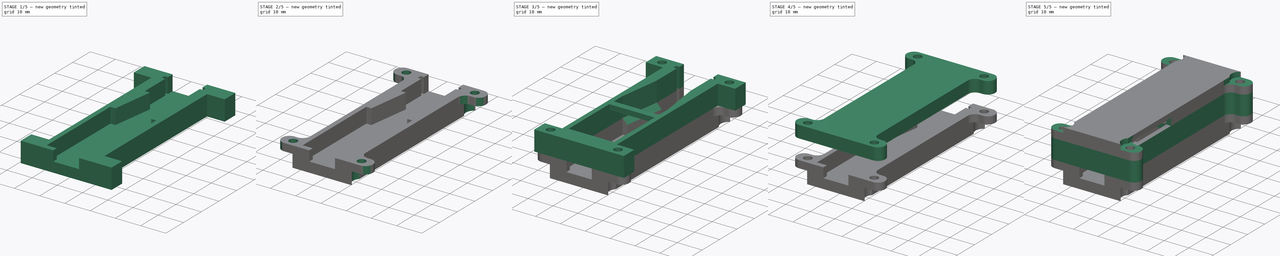
[diagram: build sequence overview — one tinted view per stage of 5, left to right]
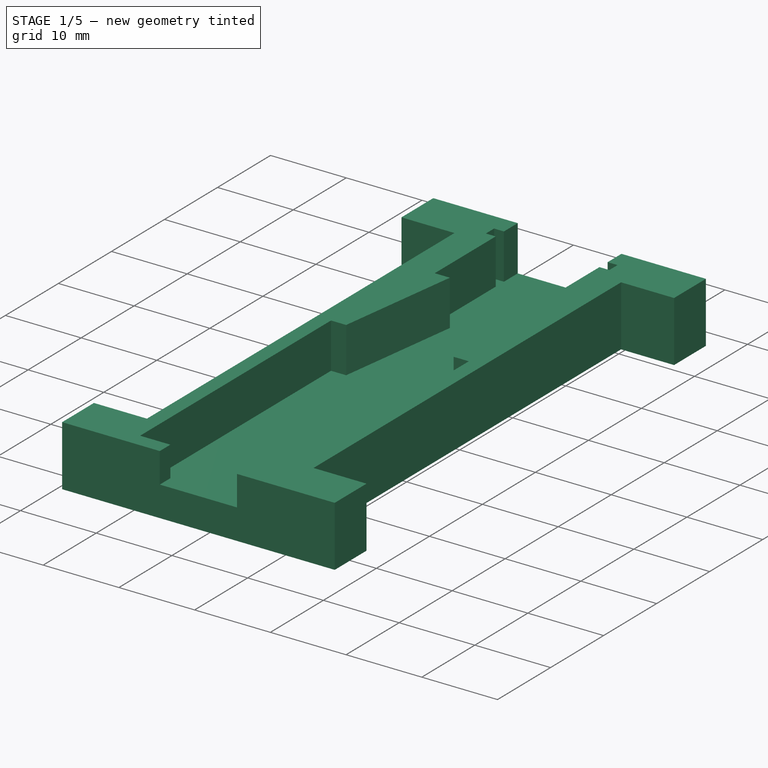
[diagram: stage 1 of 5 — iso view after this stage's code; geometry added in this stage tinted green]
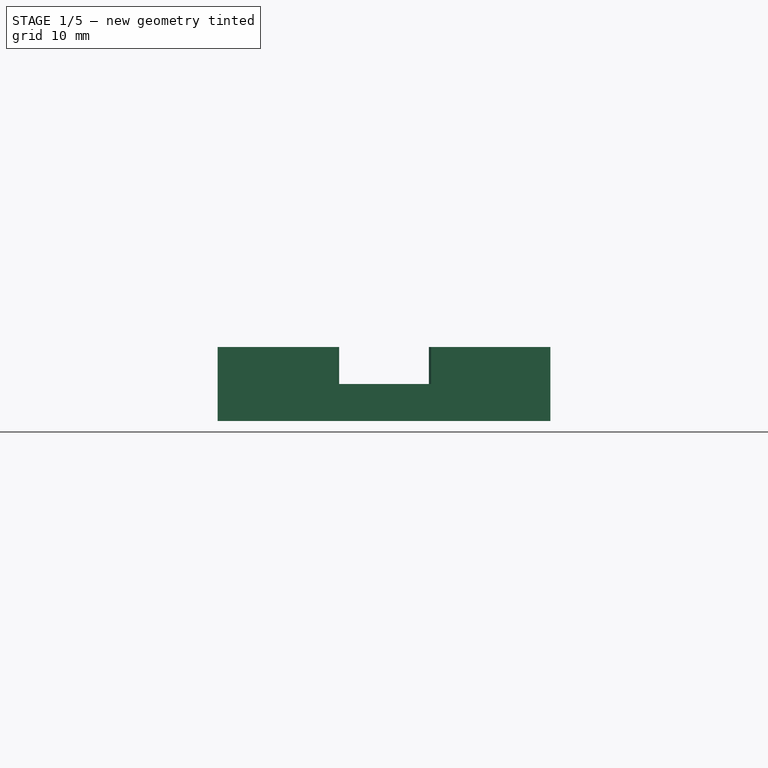
[diagram: stage 1 of 5 — front view after this stage's code; geometry added in this stage tinted green]
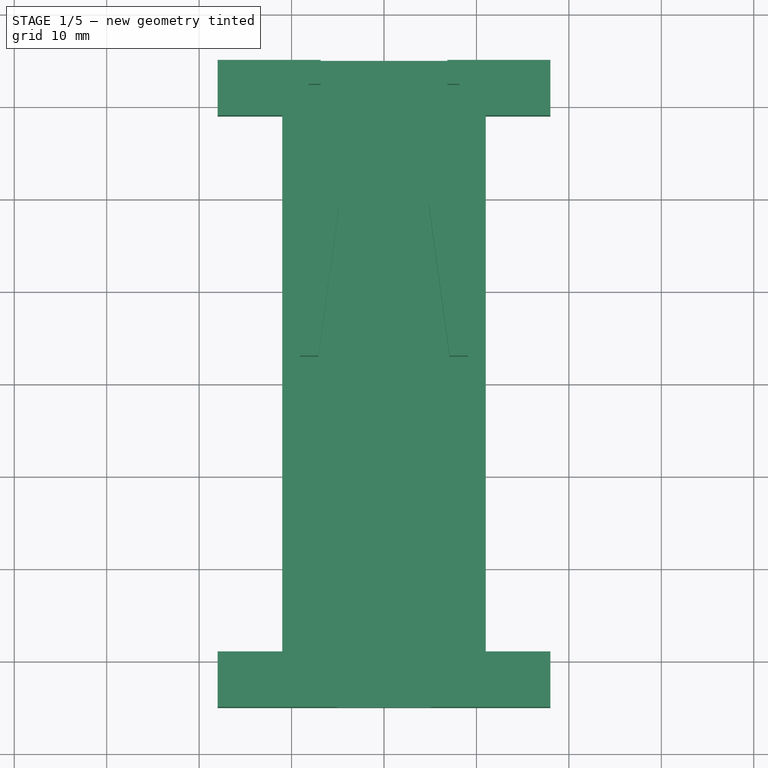
[diagram: stage 1 of 5 — top view after this stage's code; geometry added in this stage tinted green]
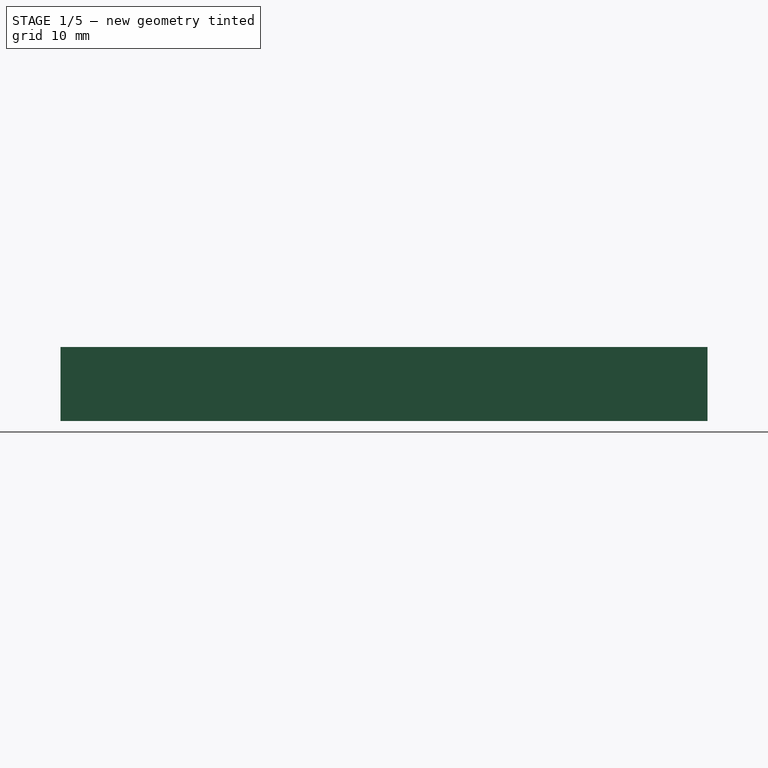
[diagram: stage 1 of 5 — right view after this stage's code; geometry added in this stage tinted green]
FCSTD DOCUMENT  (FreeCAD 0.18R4 (GitTag))
Label: shifter_usb_adapter
License: All rights reserved
LicenseURL: http://en.wikipedia.org/wiki/All_rights_reserved
objects: Sketcher::SketchObject×11, PartDesign::Pad×7, PartDesign::Pocket×4, PartDesign::Fillet×3, PartDesign::Body×3, PartDesign::ShapeBinder×2, PartDesign::Chamfer×1, App::Part×1
note: 42 computed .brp shape members not serialized (recipe doc carries the construction recipe); baked Part::Feature solids carry a one-line shape summary decoded from their .brp

FEATURE [Sketcher::SketchObject] Sketch
  MapMode = 5
  Support = -> [XY_Plane001]
  sketch-geometry (12):
    g0: LineSegment StartX=18 StartY=35 StartZ=0 EndX=-18 EndY=35 EndZ=0
    g1: LineSegment StartX=-18 StartY=35 StartZ=0 EndX=-18 EndY=29 EndZ=0
    g2: LineSegment StartX=-18 StartY=29 StartZ=0 EndX=-11 EndY=29 EndZ=0
    g3: LineSegment StartX=-11 StartY=29 StartZ=0 EndX=-11 EndY=-29 EndZ=0
    g4: LineSegment StartX=-11 StartY=-29 StartZ=0 EndX=-18 EndY=-29 EndZ=0
    g5: LineSegment StartX=-18 StartY=-29 StartZ=0 EndX=-18 EndY=-35 EndZ=0
    g6: LineSegment StartX=-18 StartY=-35 StartZ=0 EndX=18 EndY=-35 EndZ=0
    g7: LineSegment StartX=18 StartY=-35 StartZ=0 EndX=18 EndY=-29 EndZ=0
    g8: LineSegment StartX=18 StartY=-29 StartZ=0 EndX=11 EndY=-29 EndZ=0
    g9: LineSegment StartX=11 StartY=-29 StartZ=0 EndX=11 EndY=29 EndZ=0
    g10: LineSegment StartX=11 StartY=29 StartZ=0 EndX=18 EndY=29 EndZ=0
    g11: LineSegment StartX=18 StartY=29 StartZ=0 EndX=18 EndY=35 EndZ=0
  constraints (33):
    c: Coincident(g0,g1)
    c: Coincident(g1,g2)
    c: Coincident(g2,g3)
    c: Coincident(g3,g4)
    c: Coincident(g4,g5)
    c: Coincident(g5,g6)
    c: Coincident(g6,g7)
    c: Coincident(g7,g8)
    c: Coincident(g8,g9)
    c: Coincident(g9,g10)
    c: Coincident(g10,g11)
    c: Coincident(g11,g0)
    c: Horizontal(g2)
    c: Horizontal(g10)
    c: Horizontal(g4)
    c: Horizontal(g8)
    c: Horizontal(g6)
    c: Vertical(g5)
    c: Vertical(g9)
    c: Vertical(g7)
    c: Vertical(g11)
    c: Vertical(g1)
    c: PointOnObject(g8,g4)
    c: PointOnObject(g7,g11)
    c: PointOnObject(g4,g1)
    c: Equal(g1,g5)
    c: Symmetric(g0,g0,g-2)
    c: Symmetric(g9,g2,g-2)
    c: DistanceX(g2,g9) = 22
    c: DistanceY(g6,g0) = 70
    c: DistanceY(g11,g11) = 6
    c: DistanceX(g10,g10) = 7
    c: Symmetric(g2,g3,g-1)
FEATURE [PartDesign::Pad] Pad
  Length = 2
  Length2 = 100
  Profile = -> Sketch
  Type = 0
FEATURE [Sketcher::SketchObject] Sketch001
  ExternalGeometry = -> [Pad]
  MapMode = 5
  Placement = pos=(0,0,2) rot=(0,0,1;0rad)
  Support = -> [Pad]
  sketch-geometry (36):
    g0: LineSegment StartX=-6.85 StartY=35 StartZ=0 EndX=-18 EndY=35 EndZ=0
    g1: LineSegment StartX=-18 StartY=35 StartZ=0 EndX=-18 EndY=29 EndZ=0
    g2: LineSegment StartX=-18 StartY=29 StartZ=0 EndX=-11 EndY=29 EndZ=0
    g3: LineSegment StartX=-11 StartY=29 StartZ=0 EndX=-11 EndY=-29 EndZ=0
    g4: LineSegment StartX=-11 StartY=-29 StartZ=0 EndX=-18 EndY=-29 EndZ=0
    g5: LineSegment StartX=-18 StartY=-29 StartZ=0 EndX=-18 EndY=-35 EndZ=0
    g6: LineSegment StartX=-18 StartY=-35 StartZ=0 EndX=-5.1 EndY=-35 EndZ=0
    g7: LineSegment StartX=-5.1 StartY=-35 StartZ=0 EndX=-5.1 EndY=-33 EndZ=0
    g8: LineSegment StartX=-5.1 StartY=-33 StartZ=0 EndX=-9.1 EndY=-33 EndZ=0
    g9: LineSegment StartX=-9.1 StartY=-33 StartZ=0 EndX=-9.1 EndY=3 EndZ=0
    g10: LineSegment StartX=-4.85 StartY=19.35 StartZ=0 EndX=-6.85 EndY=19.35 EndZ=0
    g11: LineSegment StartX=-6.85 StartY=19.35 StartZ=0 EndX=-6.85 EndY=30.85 EndZ=0
    g12: LineSegment StartX=-6.85 StartY=30.85 StartZ=0 EndX=-8.15 EndY=30.85 EndZ=0
    g13: LineSegment StartX=-8.15 StartY=30.85 StartZ=0 EndX=-8.15 EndY=32.4 EndZ=0
    g14: LineSegment StartX=-8.15 StartY=32.4 StartZ=0 EndX=-6.85 EndY=32.4 EndZ=0
    g15: LineSegment StartX=-6.85 StartY=32.4 StartZ=0 EndX=-6.85 EndY=35 EndZ=0
    g16: LineSegment StartX=6.85 StartY=35 StartZ=0 EndX=18 EndY=35 EndZ=0
    g17: LineSegment StartX=18 StartY=35 StartZ=0 EndX=18 EndY=29 EndZ=0
    g18: LineSegment StartX=18 StartY=29 StartZ=0 EndX=11 EndY=29 EndZ=0
    g19: LineSegment StartX=11 StartY=29 StartZ=0 EndX=11 EndY=-29 EndZ=0
    g20: LineSegment StartX=11 StartY=-29 StartZ=0 EndX=18 EndY=-29 EndZ=0
    g21: LineSegment StartX=18 StartY=-29 StartZ=0 EndX=18 EndY=-35 EndZ=0
    g22: LineSegment StartX=18 StartY=-35 StartZ=0 EndX=5.1 EndY=-35 EndZ=0
    g23: LineSegment StartX=5.1 StartY=-35 StartZ=0 EndX=5.1 EndY=-33 EndZ=0
    g24: LineSegment StartX=5.1 StartY=-33 StartZ=0 EndX=9.1 EndY=-33 EndZ=0
    g25: LineSegment StartX=9.1 StartY=-33 StartZ=0 EndX=9.1 EndY=3 EndZ=0
    g26: LineSegment StartX=4.85 StartY=19.35 StartZ=0 EndX=6.85 EndY=19.35 EndZ=0
    g27: LineSegment StartX=6.85 StartY=19.35 StartZ=0 EndX=6.85 EndY=30.85 EndZ=0
    g28: LineSegment StartX=6.85 StartY=30.85 StartZ=0 EndX=8.15 EndY=30.85 EndZ=0
    g29: LineSegment StartX=8.15 StartY=30.85 StartZ=0 EndX=8.15 EndY=32.4 EndZ=0
    g30: LineSegment StartX=8.15 StartY=32.4 StartZ=0 EndX=6.85 EndY=32.4 EndZ=0
    g31: LineSegment StartX=6.85 StartY=32.4 StartZ=0 EndX=6.85 EndY=35 EndZ=0
    g32: LineSegment StartX=-9.1 StartY=3 StartZ=0 EndX=-7.1 EndY=3 EndZ=0
    g33: LineSegment StartX=-4.85 StartY=19.35 StartZ=0 EndX=-7.1 EndY=3 EndZ=0
    g34: LineSegment StartX=4.85 StartY=19.35 StartZ=0 EndX=7.1 EndY=3 EndZ=0
    g35: LineSegment StartX=7.1 StartY=3 StartZ=0 EndX=9.1 EndY=3 EndZ=0
  constraints (89):
    c: Coincident(g0,g1)
    c: Coincident(g1,g2)
    c: Coincident(g2,g3)
    c: Coincident(g3,g4)
    c: Coincident(g4,g5)
    c: Coincident(g5,g6)
    c: Coincident(g6,g7)
    c: Coincident(g7,g8)
    c: Coincident(g8,g9)
    c: Coincident(g10,g11)
    c: Coincident(g11,g12)
    c: Coincident(g12,g13)
    c: Coincident(g13,g14)
    c: Coincident(g14,g15)
    c: Coincident(g15,g0)
    c: Horizontal(g0)
    c: Horizontal(g14)
    c: Horizontal(g12)
    c: Horizontal(g10)
    c: Horizontal(g8)
    c: Horizontal(g6)
    c: Vertical(g15)
    c: Vertical(g13)
    c: Vertical(g11)
    c: Vertical(g9)
    c: Vertical(g7)
    c: PointOnObject(g11,g15)
    c: Coincident(g-8,g0)
    c: Coincident(g-7,g1)
    c: Coincident(g2,g-6)
    c: Coincident(g3,g-5)
    c: Coincident(g-3,g4)
    c: Coincident(g-4,g5)
    c: DistanceX(g10,g10) = 2
    c: DistanceX(g8,g-1) = 9.1
    c: DistanceX(g8,g8) = 4
    c: DistanceY(g7,g7) = 2
    c: DistanceY(g9,g9) = 36
    c: DistanceY(g13,g13) = 1.55
    c: DistanceY(g15,g15) = 2.6
    c: DistanceY(g11,g11) = 11.5
    c: DistanceX(g14,g14) = 1.3
    c: DistanceX(g11,g-1) = 6.85
    c: Coincident(g16,g17)
    c: Coincident(g17,g18)
    c: Coincident(g18,g19)
    c: Coincident(g19,g20)
    c: Coincident(g20,g21)
    c: Coincident(g21,g22)
    c: Coincident(g22,g23)
    c: Coincident(g23,g24)
    c: Coincident(g24,g25)
    c: Coincident(g26,g27)
    c: Coincident(g27,g28)
    c: Coincident(g28,g29)
    c: Coincident(g29,g30)
    c: Coincident(g30,g31)
    c: Coincident(g31,g16)
    c: Horizontal(g30)
    c: Horizontal(g28)
    c: Horizontal(g26)
    c: Horizontal(g24)
    c: Horizontal(g22)
    c: Vertical(g31)
    c: Vertical(g29)
    c: Vertical(g27)
    c: Vertical(g25)
    c: Vertical(g23)
    c: Symmetric(g0,g16,g-2)
    c: Symmetric(g29,g13,g-2)
    c: Symmetric(g18,g2,g-2)
    c: Symmetric(g17,g1,g-2)
    c: Symmetric(g16,g0,g-2)
    c: Symmetric(g27,g11,g-2)
    c: Symmetric(g26,g10,g-2)
    c: Symmetric(g25,g9,g-2)
    c: Symmetric(g23,g7,g-2)
    c: Symmetric(g19,g3,g-2)
    c: Symmetric(g20,g4,g-2)
    c: Symmetric(g21,g5,g-2)
    c: Coincident(g10,g33)
    c: Coincident(g33,g32)
    c: Coincident(g32,g9)
    c: Horizontal(g32)
    c: Equal(g32,g10)
    c: Coincident(g35,g34)
    c: Coincident(g35,g25)
    c: Coincident(g34,g26)
    c: Symmetric(g34,g32,g-2)
FEATURE [PartDesign::Pad] Pad001
  BaseFeature = -> Pad
  Length = 6
  Length2 = 100
  Profile = -> Sketch001
  Type = 0
FEATURE [Sketcher::SketchObject] Sketch005
  ExternalGeometry = -> [Pad001]
  MapMode = 5
  Placement = pos=(0,0,2) rot=(0,0,1;0rad)
  Support = -> [Pad001]
  sketch-geometry (4):
    g0: LineSegment StartX=-5.1 StartY=-33 StartZ=0 EndX=5.1 EndY=-33 EndZ=0
    g1: LineSegment StartX=5.1 StartY=-33 StartZ=0 EndX=5.1 EndY=-35 EndZ=0
    g2: LineSegment StartX=5.1 StartY=-35 StartZ=0 EndX=-5.1 EndY=-35 EndZ=0
    g3: LineSegment StartX=-5.1 StartY=-35 StartZ=0 EndX=-5.1 EndY=-33 EndZ=0
  constraints (10):
    c: Coincident(g0,g1)
    c: Coincident(g1,g2)
    c: Coincident(g2,g3)
    c: Coincident(g3,g0)
    c: Horizontal(g0)
    c: Horizontal(g2)
    c: Vertical(g1)
    c: Vertical(g3)
    c: Coincident(g0,g-3)
    c: Coincident(g1,g-4)
FEATURE [PartDesign::Pad] Pad005
  BaseFeature = -> Pad001
  Length = 2
  Length2 = 100
  Profile = -> Sketch005
  Type = 0
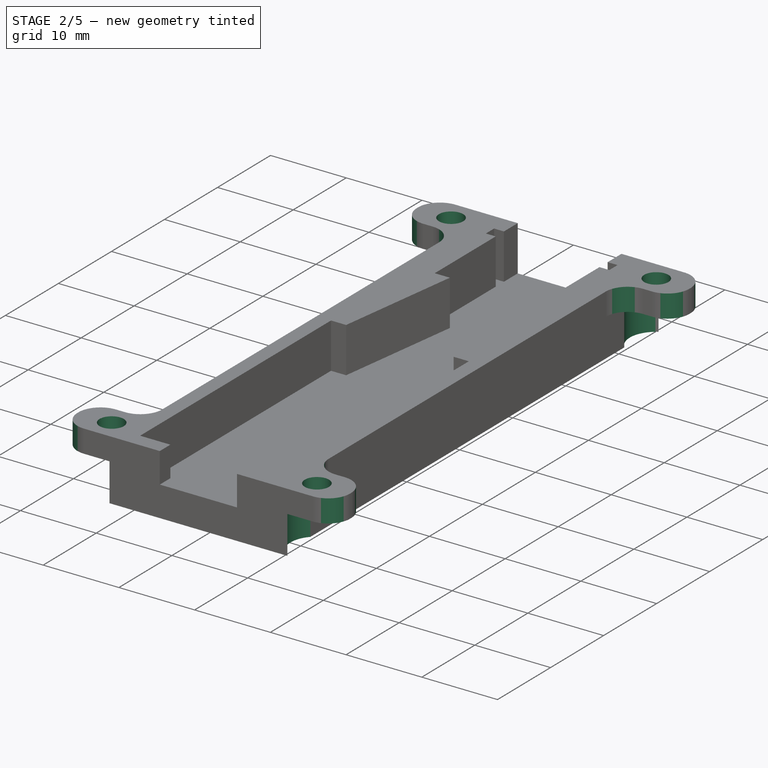
[diagram: stage 2 of 5 — iso view after this stage's code; geometry added in this stage tinted green]
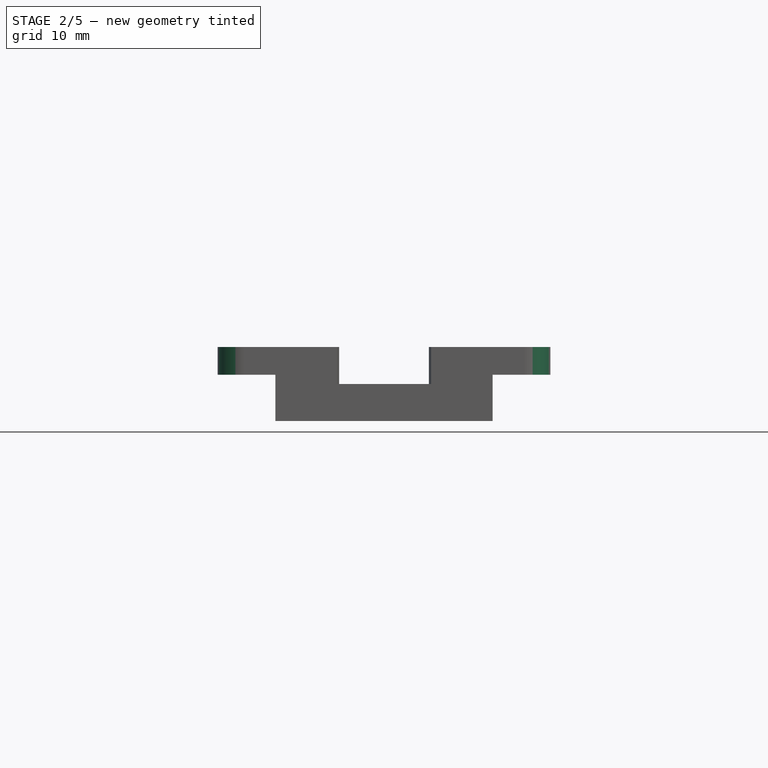
[diagram: stage 2 of 5 — front view after this stage's code; geometry added in this stage tinted green]
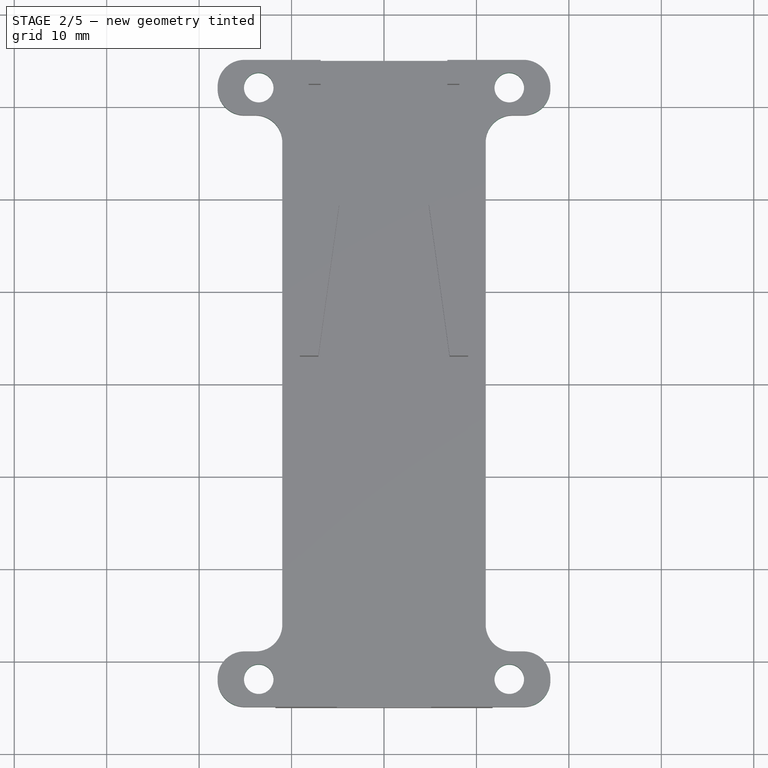
[diagram: stage 2 of 5 — top view after this stage's code; geometry added in this stage tinted green]
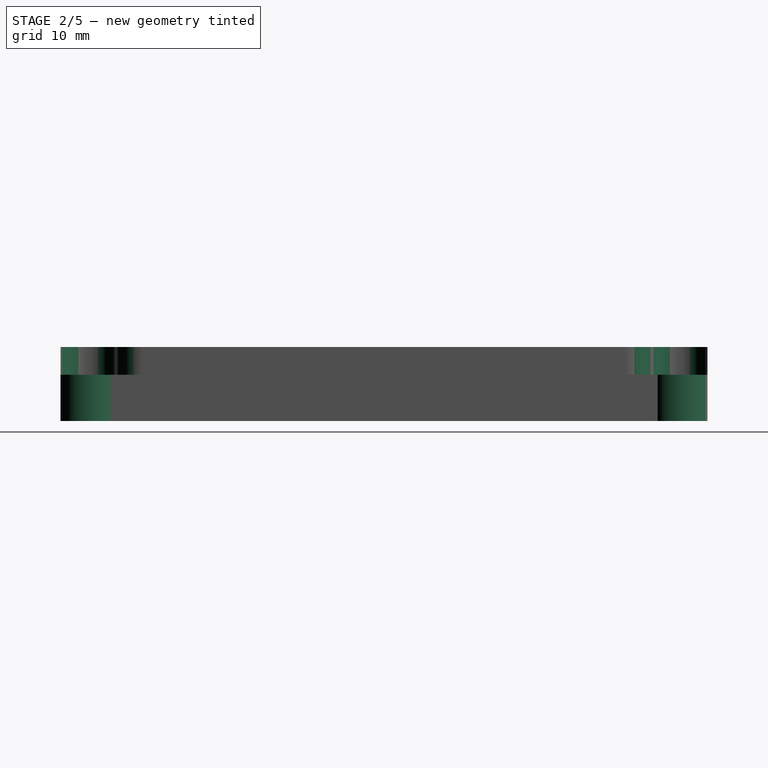
[diagram: stage 2 of 5 — right view after this stage's code; geometry added in this stage tinted green]
FEATURE [Sketcher::SketchObject] Sketch006
  ExternalGeometry = -> [Pad005]
  MapMode = 5
  Placement = pos=(0,0,8) rot=(0,0,1;0rad)
  Support = -> [Pad005]
  sketch-geometry (6):
    g0: Circle CenterX=-13.55 CenterY=32 CenterZ=0 NormalX=0 NormalY=0 NormalZ=1 AngleXU=0 Radius=1.6
    g1: Circle CenterX=-13.55 CenterY=-32 CenterZ=0 NormalX=0 NormalY=0 NormalZ=1 AngleXU=0 Radius=1.6
    g2: Circle CenterX=13.55 CenterY=32 CenterZ=0 NormalX=0 NormalY=0 NormalZ=1 AngleXU=0 Radius=1.6
    g3: Circle CenterX=13.55 CenterY=-32 CenterZ=0 NormalX=0 NormalY=0 NormalZ=1 AngleXU=0 Radius=1.6
    g4: GeomPoint X=-18 Y=-32 Z=0
    g5: GeomPoint X=-9.1 Y=-32 Z=0
  constraints (11):
    c: Diameter(g0) = 3.2
    c: Equal(g0,g1)
    c: Diameter(g2) = 3.2
    c: Equal(g2,g3)
    c: Symmetric(g2,g0,g-2)
    c: Symmetric(g1,g3,g-2)
    c: Symmetric(g1,g0,g-1)
    c: PointOnObject(g5,g-3)
    c: Symmetric(g-4,g-4,g4)
    c: Horizontal(g4,g1)
    c: Symmetric(g4,g5,g1)
FEATURE [PartDesign::Pocket] Pocket
  BaseFeature = -> Pad005
  Length = 5
  Length2 = 100
  Profile = -> Sketch006
  Type = 1
FEATURE [PartDesign::Fillet] Fillet002
  Base = -> Pocket [Edge59,Edge140,Edge144,Edge146,Edge51,Edge55,Edge145,Edge142,Edge143,Edge141,Edge139,Edge27]
  BaseFeature = -> Pocket
  Radius = 2.9
FEATURE [Sketcher::SketchObject] Sketch011
  ExternalGeometry = -> [Fillet002]
  MapMode = 5
  Placement = pos=(0,0,0) rot=(1,0,0;3.14159rad)
  Support = -> [Fillet002]
  sketch-geometry (20):
    g0: ArcOfCircle CenterX=-13.55 CenterY=32 CenterZ=0 NormalX=0 NormalY=0 NormalZ=1 AngleXU=0 Radius=3.5 StartAngle=5.52862 EndAngle=7.85398
    g1: ArcOfCircle CenterX=13.55 CenterY=32 CenterZ=0 NormalX=0 NormalY=0 NormalZ=1 AngleXU=0 Radius=3.5 StartAngle=1.5708 EndAngle=3.89615
    g2: ArcOfCircle CenterX=13.55 CenterY=-32 CenterZ=0 NormalX=0 NormalY=0 NormalZ=1 AngleXU=0 Radius=3.5 StartAngle=2.38703 EndAngle=4.71239
    g3: ArcOfCircle CenterX=-13.55 CenterY=-32 CenterZ=0 NormalX=0 NormalY=0 NormalZ=1 AngleXU=0 Radius=3.5 StartAngle=4.71239 EndAngle=7.03775
    g4: LineSegment StartX=-13.55 StartY=35.5 StartZ=0 EndX=-21 EndY=35.5 EndZ=0
    g5: LineSegment StartX=-21 StartY=35.5 StartZ=0 EndX=-21 EndY=26.1 EndZ=0
    g6: LineSegment StartX=-21 StartY=-26.1 StartZ=0 EndX=-21 EndY=-35.5 EndZ=0
    g7: LineSegment StartX=-21 StartY=-35.5 StartZ=0 EndX=-13.55 EndY=-35.5 EndZ=0
    g8: LineSegment StartX=13.55 StartY=-35.5 StartZ=0 EndX=21 EndY=-35.5 EndZ=0
    g9: LineSegment StartX=21 StartY=-35.5 StartZ=0 EndX=21 EndY=-26.1 EndZ=0
    g10: LineSegment StartX=21 StartY=26.1 StartZ=0 EndX=21 EndY=35.5 EndZ=0
    g11: LineSegment StartX=21 StartY=35.5 StartZ=0 EndX=13.55 EndY=35.5 EndZ=0
    g12: LineSegment StartX=-11 StartY=29.6026 StartZ=0 EndX=-11 EndY=26.1 EndZ=0
    g13: LineSegment StartX=-11 StartY=26.1 StartZ=0 EndX=-21 EndY=26.1 EndZ=0
    g14: LineSegment StartX=-11 StartY=-29.6026 StartZ=0 EndX=-11 EndY=-26.1 EndZ=0
    g15: LineSegment StartX=-11 StartY=-26.1 StartZ=0 EndX=-21 EndY=-26.1 EndZ=0
    g16: LineSegment StartX=11 StartY=-29.6026 StartZ=0 EndX=11 EndY=-26.1 EndZ=0
    g17: LineSegment StartX=11 StartY=-26.1 StartZ=0 EndX=21 EndY=-26.1 EndZ=0
    g18: LineSegment StartX=11 StartY=29.6026 StartZ=0 EndX=11 EndY=26.1 EndZ=0
    g19: LineSegment StartX=11 StartY=26.1 StartZ=0 EndX=21 EndY=26.1 EndZ=0
  constraints (56):
    c: Coincident(g-6,g3)
    c: Coincident(g-5,g2)
    c: Coincident(g1,g-4)
    c: Coincident(g-3,g0)
    c: Vertical(g0,g0)
    c: Vertical(g3,g3)
    c: Vertical(g2,g2)
    c: Vertical(g1,g1)
    c: Equal(g2,g3)
    c: Equal(g3,g0)
    c: Equal(g0,g1)
    c: Diameter(g0) = 7
    c: Coincident(g4,g5)
    c: Coincident(g6,g7)
    c: Coincident(g8,g9)
    c: Coincident(g10,g11)
    c: Coincident(g11,g1)
    c: Coincident(g0,g4)
    c: Coincident(g3,g7)
    c: Coincident(g8,g2)
    c: Horizontal(g4)
    c: Horizontal(g11)
    c: Horizontal(g8)
    c: Horizontal(g7)
    c: Vertical(g6)
    c: Vertical(g5)
    c: Vertical(g10)
    c: Vertical(g9)
    c: PointOnObject(g1,g-8)
    c: PointOnObject(g2,g-8)
    c: PointOnObject(g3,g-7)
    c: PointOnObject(g0,g-7)
    c: Coincident(g12,g13)
    c: Coincident(g14,g15)
    c: Coincident(g16,g17)
    c: Coincident(g18,g19)
    c: Coincident(g18,g1)
    c: Coincident(g19,g10)
    c: Coincident(g9,g17)
    c: Coincident(g16,g2)
    c: Coincident(g3,g14)
    c: Coincident(g6,g15)
    c: Coincident(g13,g5)
    c: Coincident(g0,g12)
    c: Coincident(g12,g-7)
    c: Coincident(g18,g-8)
    c: Coincident(g16,g-8)
    c: Coincident(g-7,g14)
    c: Horizontal(g13)
    c: Horizontal(g19)
    c: Horizontal(g17)
    c: Horizontal(g15)
    c: Equal(g15,g13)
    c: Equal(g13,g19)
    c: Equal(g19,g17)
    c: DistanceX(g17,g17) = 10
FEATURE [PartDesign::Pocket] Pocket003
  BaseFeature = -> Fillet002
  Length = 5
  Length2 = 100
  Profile = -> Sketch011
  Type = 0
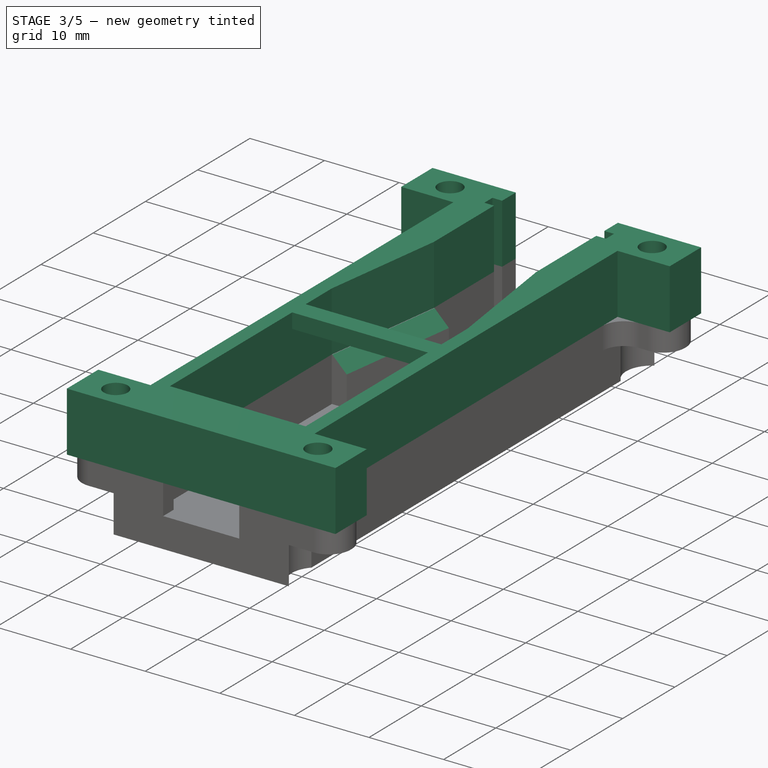
[diagram: stage 3 of 5 — iso view after this stage's code; geometry added in this stage tinted green]
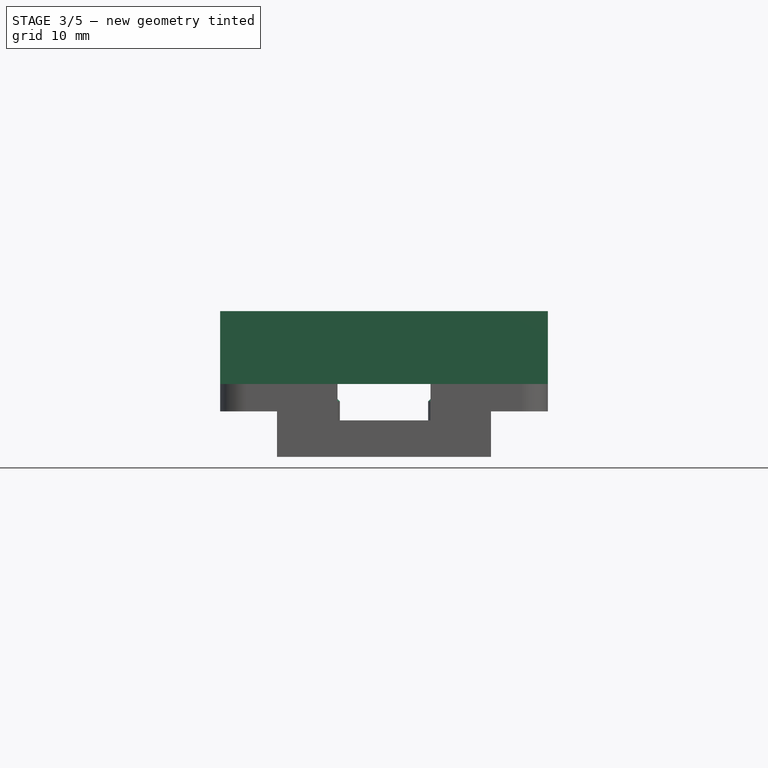
[diagram: stage 3 of 5 — front view after this stage's code; geometry added in this stage tinted green]
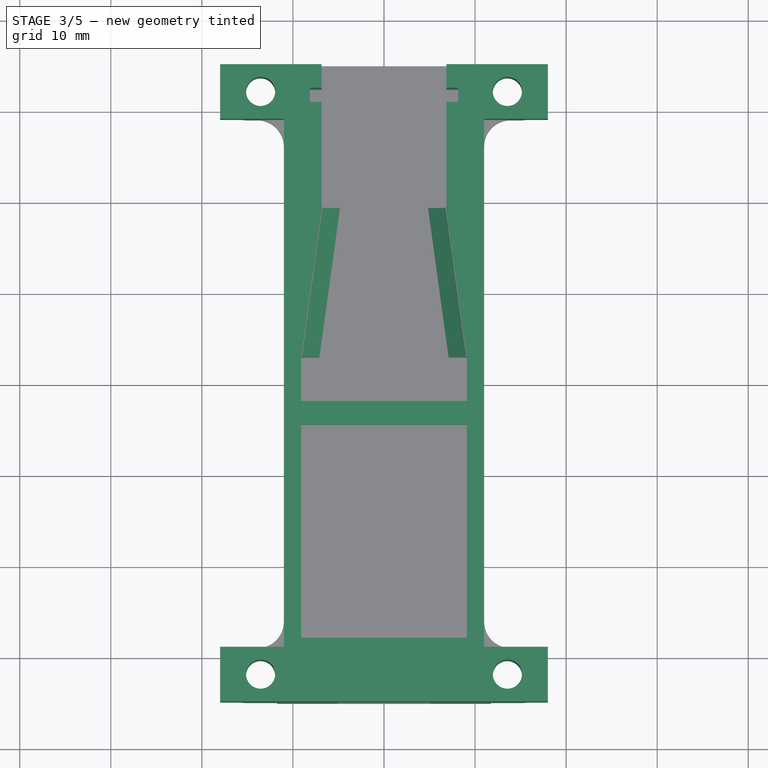
[diagram: stage 3 of 5 — top view after this stage's code; geometry added in this stage tinted green]
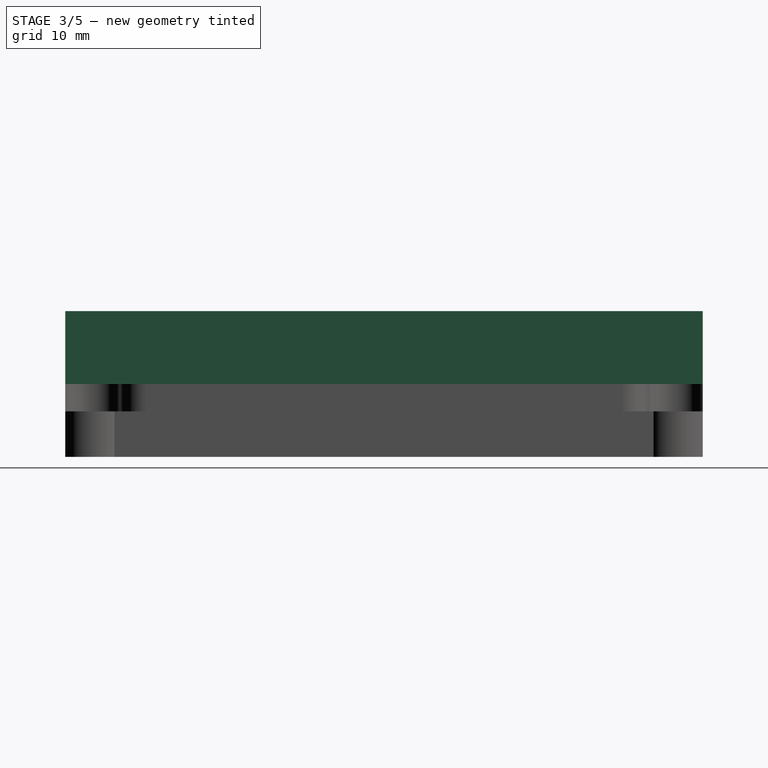
[diagram: stage 3 of 5 — right view after this stage's code; geometry added in this stage tinted green]
FEATURE [PartDesign::ShapeBinder] ShapeBinder  label="ReferencePad003"
  Support = -> [Pocket]
  TraceSupport = false
FEATURE [Sketcher::SketchObject] Sketch002
  ExternalGeometry = -> [ShapeBinder]
  MapMode = 5
  Placement = pos=(0,0,8) rot=(0,0,1;0rad)
  Support = -> [ShapeBinder]
  sketch-geometry (34):
    g0: LineSegment StartX=-6.85 StartY=35 StartZ=0 EndX=-18 EndY=35 EndZ=0
    g1: LineSegment StartX=-18 StartY=35 StartZ=0 EndX=-18 EndY=29 EndZ=0
    g2: LineSegment StartX=-18 StartY=29 StartZ=0 EndX=-11 EndY=29 EndZ=0
    g3: LineSegment StartX=-11 StartY=29 StartZ=0 EndX=-11 EndY=-29 EndZ=0
    g4: LineSegment StartX=-11 StartY=-29 StartZ=0 EndX=-18 EndY=-29 EndZ=0
    g5: LineSegment StartX=-18 StartY=-29 StartZ=0 EndX=-18 EndY=-35 EndZ=0
    g6: LineSegment StartX=-9.1 StartY=-33 StartZ=0 EndX=-9.1 EndY=3 EndZ=0
    g7: LineSegment StartX=-9.1 StartY=3 StartZ=0 EndX=-6.85 EndY=19.35 EndZ=0
    g8: LineSegment StartX=-6.85 StartY=19.35 StartZ=0 EndX=-6.85 EndY=30.85 EndZ=0
    g9: LineSegment StartX=-6.85 StartY=30.85 StartZ=0 EndX=-8.15 EndY=30.85 EndZ=0
    g10: LineSegment StartX=-8.15 StartY=30.85 StartZ=0 EndX=-8.15 EndY=32.4 EndZ=0
    g11: LineSegment StartX=-8.15 StartY=32.4 StartZ=0 EndX=-6.85 EndY=32.4 EndZ=0
    g12: LineSegment StartX=-6.85 StartY=32.4 StartZ=0 EndX=-6.85 EndY=35 EndZ=0
    g13: LineSegment StartX=6.85 StartY=35 StartZ=0 EndX=18 EndY=35 EndZ=0
    g14: LineSegment StartX=18 StartY=35 StartZ=0 EndX=18 EndY=29 EndZ=0
    g15: LineSegment StartX=18 StartY=29 StartZ=0 EndX=11 EndY=29 EndZ=0
    g16: LineSegment StartX=11 StartY=29 StartZ=0 EndX=11 EndY=-29 EndZ=0
    g17: LineSegment StartX=11 StartY=-29 StartZ=0 EndX=18 EndY=-29 EndZ=0
    g18: LineSegment StartX=18 StartY=-29 StartZ=0 EndX=18 EndY=-35 EndZ=0
    g19: LineSegment StartX=9.1 StartY=-33 StartZ=0 EndX=9.1 EndY=3 EndZ=0
    g20: LineSegment StartX=9.1 StartY=3 StartZ=0 EndX=6.85 EndY=19.35 EndZ=0
    g21: LineSegment StartX=6.85 StartY=19.35 StartZ=0 EndX=6.85 EndY=30.85 EndZ=0
    g22: LineSegment StartX=6.85 StartY=30.85 StartZ=0 EndX=8.15 EndY=30.85 EndZ=0
    g23: LineSegment StartX=8.15 StartY=30.85 StartZ=0 EndX=8.15 EndY=32.4 EndZ=0
    g24: LineSegment StartX=8.15 StartY=32.4 StartZ=0 EndX=6.85 EndY=32.4 EndZ=0
    g25: LineSegment StartX=6.85 StartY=32.4 StartZ=0 EndX=6.85 EndY=35 EndZ=0
    g26: LineSegment StartX=-9.1 StartY=-33 StartZ=0 EndX=9.1 EndY=-33 EndZ=0
    g27: LineSegment StartX=18 StartY=-35 StartZ=0 EndX=-18 EndY=-35 EndZ=0
    g28: Circle CenterX=-13.55 CenterY=32 CenterZ=0 NormalX=0 NormalY=0 NormalZ=1 AngleXU=0 Radius=1.6
    g29: Circle CenterX=-13.55 CenterY=-32 CenterZ=0 NormalX=0 NormalY=0 NormalZ=1 AngleXU=0 Radius=1.6
    g30: GeomPoint X=-18 Y=-32 Z=0
    g31: GeomPoint X=-9.1 Y=-32 Z=0
    g32: Circle CenterX=13.55 CenterY=32 CenterZ=0 NormalX=0 NormalY=0 NormalZ=1 AngleXU=0 Radius=1.6
    g33: Circle CenterX=13.55 CenterY=-32 CenterZ=0 NormalX=0 NormalY=0 NormalZ=1 AngleXU=0 Radius=1.6
  constraints (67):
    c: Coincident(g5,g27)
    c: Coincident(g4,g5)
    c: Coincident(g1,g2)
    c: Coincident(g0,g1)
    c: Coincident(g3,g4)
    c: Coincident(g2,g3)
    c: Coincident(g6,g26)
    c: Coincident(g7,g6)
    c: Coincident(g9,g10)
    c: Coincident(g10,g11)
    c: Coincident(g7,g8)
    c: Coincident(g8,g9)
    c: Coincident(g11,g12)
    c: Coincident(g0,g12)
    c: Coincident(g20,g21)
    c: Coincident(g21,g22)
    c: Coincident(g24,g25)
    c: Coincident(g25,g13)
    c: Coincident(g22,g23)
    c: Coincident(g23,g24)
    c: Coincident(g19,g26)
    c: Coincident(g19,g20)
    c: Coincident(g16,g17)
    c: Coincident(g15,g16)
    c: Coincident(g18,g27)
    c: Coincident(g18,g17)
    c: Coincident(g15,g14)
    c: Coincident(g14,g13)
    c: Symmetric(g19,g6,g-2)
    c: Symmetric(g18,g5,g-2)
    c: Symmetric(g16,g3,g-2)
    c: Symmetric(g4,g17,g-2)
    c: Symmetric(g6,g19,g-2)
    c: Symmetric(g20,g7,g-2)
    c: Symmetric(g21,g8,g-2)
    c: Symmetric(g22,g9,g-2)
    c: Symmetric(g23,g10,g-2)
    c: Symmetric(g11,g24,g-2)
    c: Symmetric(g15,g2,g-2)
    c: Symmetric(g1,g14,g-2)
    c: Symmetric(g13,g0,g-2)
    c: Symmetric(g0,g13,g-2)
    c: Coincident(g-3,g0)
    c: Coincident(g-4,g1)
    c: Coincident(g2,g-5)
    c: Coincident(g0,g-6)
    c: Coincident(g11,g-7)
    c: Coincident(g-8,g10)
    c: Coincident(g9,g-9)
    c: Coincident(g8,g-10)
    c: Coincident(g-11,g7)
    c: Coincident(g-12,g6)
    c: Coincident(g-13,g6)
    c: Coincident(g-14,g3)
    c: Coincident(g-15,g4)
    c: Coincident(g5,g-16)
    c: PointOnObject(g-17,g28)
    c: Equal(g29,g28)
    c: Symmetric(g28,g29,g-1)
    c: PointOnObject(g31,g6)
    c: Symmetric(g4,g5,g30)
    c: Horizontal(g30,g29)
    c: Symmetric(g30,g31,g29)
    c: Equal(g33,g32)
    c: Symmetric(g32,g28,g-2)
    c: Symmetric(g33,g29,g-2)
    c: Equal(g33,g29)
FEATURE [PartDesign::Pad] Pad002
  Length = 8
  Length2 = 100
  Profile = -> Sketch002
  Type = 0
FEATURE [Sketcher::SketchObject] Sketch008
  ExternalGeometry = -> [Pad002]
  MapMode = 5
  Placement = pos=(9.1,0,0) rot=(0.57735,-0.57735,-0.57735;2.0944rad)
  Support = -> [Pad002]
  sketch-geometry (8):
    g0: LineSegment StartX=33 StartY=16 StartZ=0 EndX=28 EndY=16 EndZ=0
    g1: LineSegment StartX=28 StartY=16 StartZ=0 EndX=28 EndY=14 EndZ=0
    g2: LineSegment StartX=28 StartY=14 StartZ=0 EndX=33 EndY=14 EndZ=0
    g3: LineSegment StartX=33 StartY=14 StartZ=0 EndX=33 EndY=16 EndZ=0
    g4: LineSegment StartX=4.6 StartY=16 StartZ=0 EndX=2 EndY=16 EndZ=0
    g5: LineSegment StartX=2 StartY=16 StartZ=0 EndX=2 EndY=14 EndZ=0
    g6: LineSegment StartX=2 StartY=14 StartZ=0 EndX=4.6 EndY=14 EndZ=0
    g7: LineSegment StartX=4.6 StartY=14 StartZ=0 EndX=4.6 EndY=16 EndZ=0
  constraints (23):
    c: Coincident(g0,g1)
    c: Coincident(g1,g2)
    c: Coincident(g2,g3)
    c: Coincident(g3,g0)
    c: Horizontal(g0)
    c: Horizontal(g2)
    c: Vertical(g1)
    c: Coincident(g4,g5)
    c: Coincident(g5,g6)
    c: Coincident(g6,g7)
    c: Coincident(g7,g4)
    c: Horizontal(g4)
    c: Horizontal(g6)
    c: Vertical(g5)
    c: Vertical(g7)
    c: Coincident(g0,g-3)
    c: PointOnObject(g4,g-3)
    c: DistanceX(g0,g-4) = 1
    c: DistanceX(g4,g0) = 23.4
    c: DistanceX(g4,g4) = 2.6
    c: Vertical(g3)
    c: PointOnObject(g6,g2)
    c: DistanceY(g3,g3) = 2
FEATURE [PartDesign::Pad] Pad006
  BaseFeature = -> Pad002
  Length = 10
  Length2 = 100
  Profile = -> Sketch008
  Type = 2
FEATURE [PartDesign::Body] Body002  label="Top"
  Group = -> [Sketch003,Pad003,Sketch004,Pad004,ShapeBinder001,Fillet,Sketch009,Pocket001,Sketch012,Pocket004]
  Origin = -> Origin003
  Tip = -> Pocket004
FEATURE [PartDesign::Chamfer] Chamfer
  Base = -> Pocket003 [Edge96,Edge123]
  BaseFeature = -> Pocket003
  Size = 1.9
FEATURE [PartDesign::Body] Body  label="Bottom"
  Group = -> [Sketch,Pad,Sketch001,Pad001,Sketch005,Pad005,Sketch006,Pocket,Fillet002,Sketch011,Pocket003,Chamfer]
  Origin = -> Origin001
  Tip = -> Chamfer
FEATURE [App::Part] Part
  Group = -> [Body,Body001,Body002]
  Origin = -> Origin
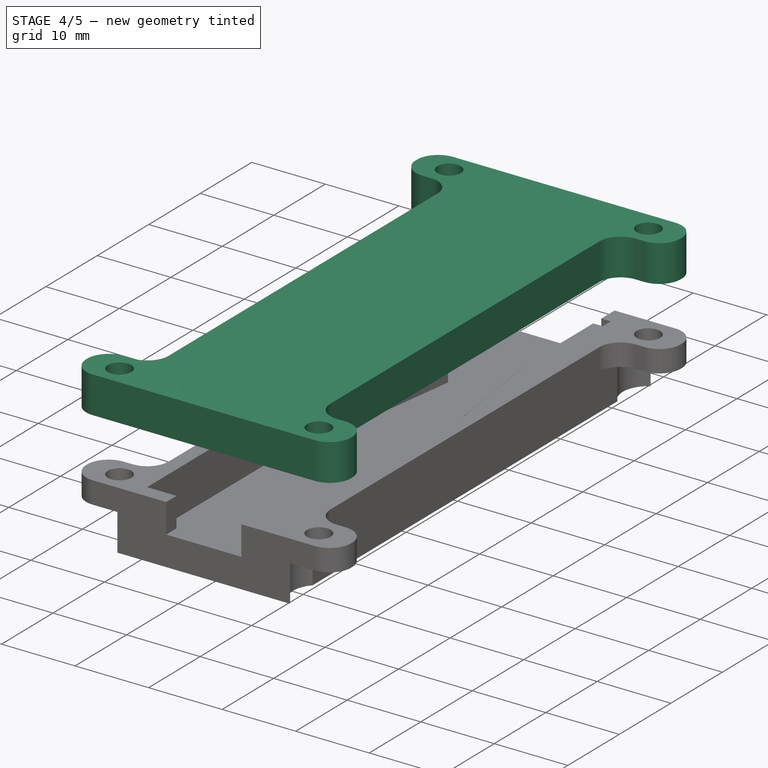
[diagram: stage 4 of 5 — iso view after this stage's code; geometry added in this stage tinted green]
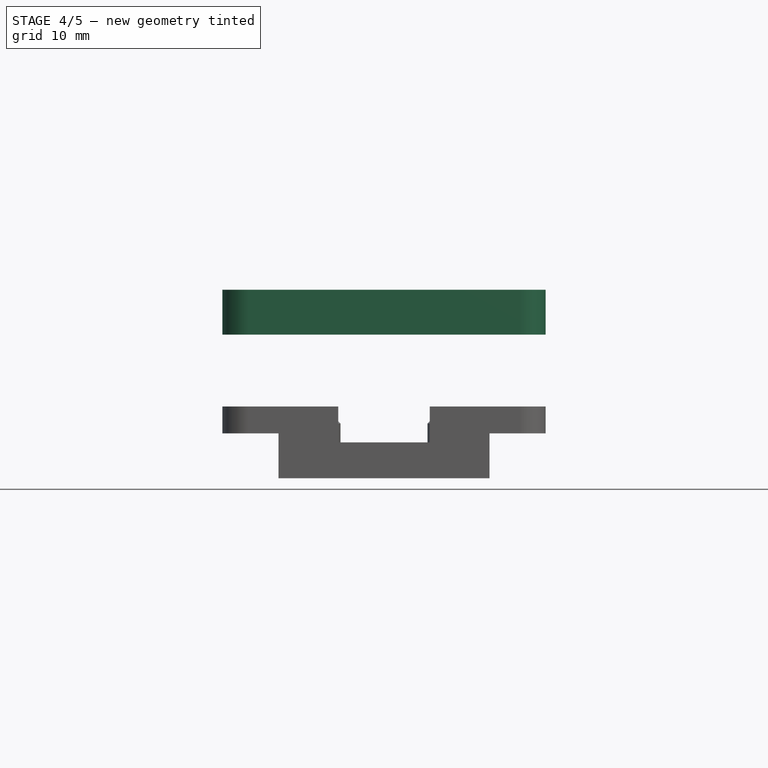
[diagram: stage 4 of 5 — front view after this stage's code; geometry added in this stage tinted green]
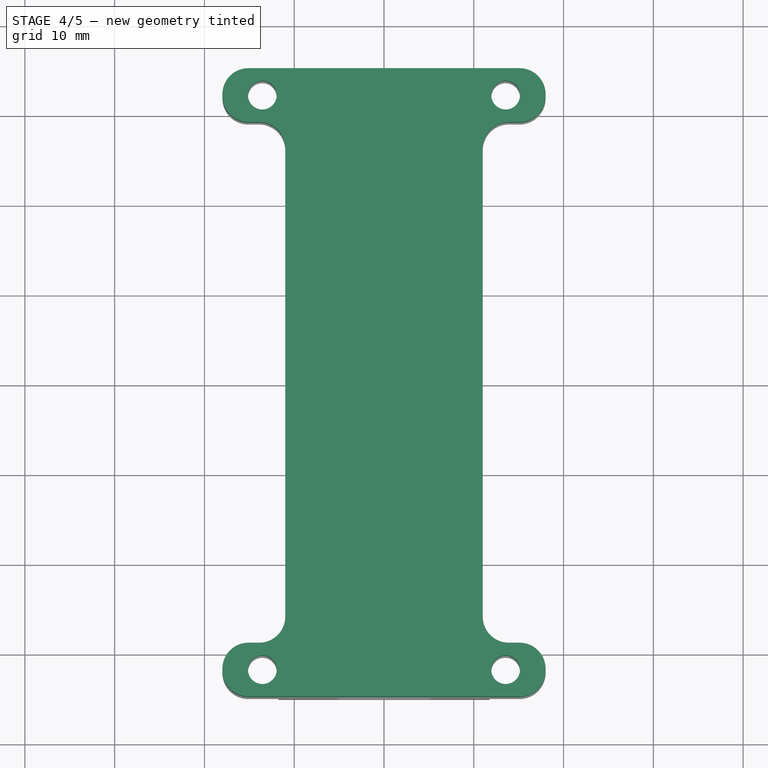
[diagram: stage 4 of 5 — top view after this stage's code; geometry added in this stage tinted green]
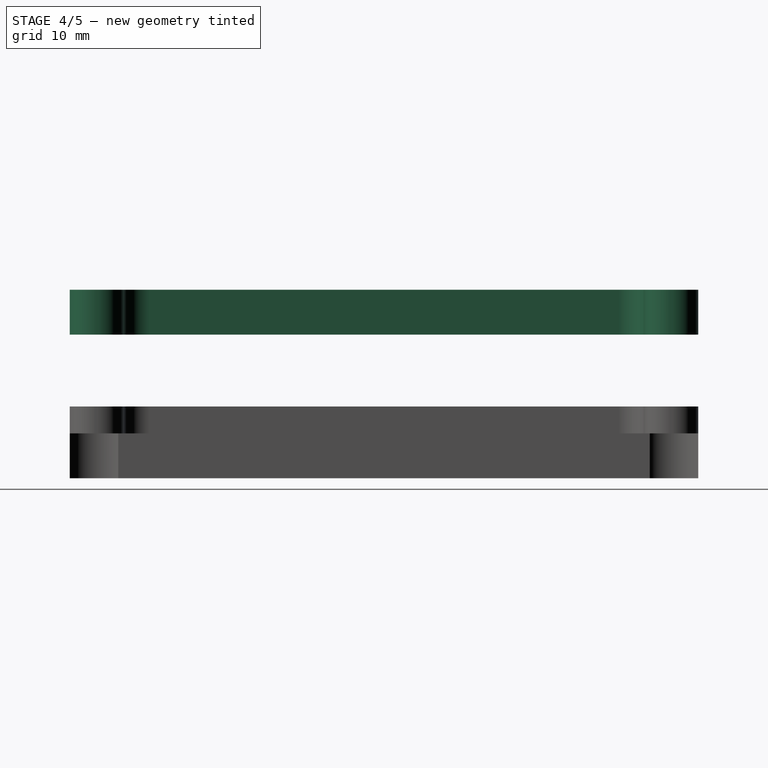
[diagram: stage 4 of 5 — right view after this stage's code; geometry added in this stage tinted green]
FEATURE [PartDesign::ShapeBinder] ShapeBinder001  label="ReferencePad004"
  Support = -> [Pad006]
  TraceSupport = false
FEATURE [Sketcher::SketchObject] Sketch003
  ExternalGeometry = -> [ShapeBinder001]
  MapMode = 5
  Placement = pos=(0,0,16) rot=(0,0,1;0rad)
  Support = -> [ShapeBinder001]
  sketch-geometry (46):
    g0: LineSegment StartX=-6.85 StartY=35 StartZ=0 EndX=-18 EndY=35 EndZ=0
    g1: LineSegment StartX=-18 StartY=35 StartZ=0 EndX=-18 EndY=29 EndZ=0
    g2: LineSegment StartX=-18 StartY=29 StartZ=0 EndX=-11 EndY=29 EndZ=0
    g3: LineSegment StartX=-11 StartY=29 StartZ=0 EndX=-11 EndY=-29 EndZ=0
    g4: LineSegment StartX=-11 StartY=-29 StartZ=0 EndX=-18 EndY=-29 EndZ=0
    g5: LineSegment StartX=-18 StartY=-29 StartZ=0 EndX=-18 EndY=-35 EndZ=0
    g6: LineSegment StartX=2.9 StartY=-28 StartZ=0 EndX=-9.1 EndY=-28 EndZ=0
    g7: LineSegment StartX=-9.1 StartY=3 StartZ=0 EndX=-6.85 EndY=19.35 EndZ=0
    g8: LineSegment StartX=-6.85 StartY=19.35 StartZ=0 EndX=-6.85 EndY=30.85 EndZ=0
    g9: LineSegment StartX=-6.85 StartY=30.85 StartZ=0 EndX=-8.15 EndY=30.85 EndZ=0
    g10: LineSegment StartX=-8.15 StartY=30.85 StartZ=0 EndX=-8.15 EndY=32.4 EndZ=0
    g11: LineSegment StartX=-8.15 StartY=32.4 StartZ=0 EndX=-6.85 EndY=32.4 EndZ=0
    g12: LineSegment StartX=-6.85 StartY=32.4 StartZ=0 EndX=-6.85 EndY=35 EndZ=0
    g13: LineSegment StartX=6.85 StartY=35 StartZ=0 EndX=18 EndY=35 EndZ=0
    g14: LineSegment StartX=18 StartY=35 StartZ=0 EndX=18 EndY=29 EndZ=0
    g15: LineSegment StartX=18 StartY=29 StartZ=0 EndX=11 EndY=29 EndZ=0
    g16: LineSegment StartX=11 StartY=29 StartZ=0 EndX=11 EndY=-29 EndZ=0
    g17: LineSegment StartX=11 StartY=-29 StartZ=0 EndX=18 EndY=-29 EndZ=0
    g18: LineSegment StartX=18 StartY=-29 StartZ=0 EndX=18 EndY=-35 EndZ=0
    g19: LineSegment StartX=5.5 StartY=-28 StartZ=0 EndX=9.1 EndY=-28 EndZ=0
    g20: LineSegment StartX=9.1 StartY=3 StartZ=0 EndX=6.85 EndY=19.35 EndZ=0
    g21: LineSegment StartX=6.85 StartY=19.35 StartZ=0 EndX=6.85 EndY=30.85 EndZ=0
    g22: LineSegment StartX=6.85 StartY=30.85 StartZ=0 EndX=8.15 EndY=30.85 EndZ=0
    g23: LineSegment StartX=8.15 StartY=30.85 StartZ=0 EndX=8.15 EndY=32.4 EndZ=0
    g24: LineSegment StartX=8.15 StartY=32.4 StartZ=0 EndX=6.85 EndY=32.4 EndZ=0
    g25: LineSegment StartX=6.85 StartY=32.4 StartZ=0 EndX=6.85 EndY=35 EndZ=0
    g26: LineSegment StartX=2.9 StartY=-28 StartZ=0 EndX=2.9 EndY=-30.6 EndZ=0
    g27: LineSegment StartX=2.9 StartY=-30.6 StartZ=0 EndX=5.5 EndY=-30.6 EndZ=0
    g28: LineSegment StartX=5.5 StartY=-30.6 StartZ=0 EndX=5.5 EndY=-28 EndZ=0
    g29: LineSegment StartX=-18 StartY=-35 StartZ=0 EndX=18 EndY=-35 EndZ=0
    g30: LineSegment StartX=-9.1 StartY=3 StartZ=0 EndX=-9.1 EndY=-2 EndZ=0
    g31: LineSegment StartX=-9.1 StartY=-2 StartZ=0 EndX=2.9 EndY=-2 EndZ=0
    g32: LineSegment StartX=2.9 StartY=-2 StartZ=0 EndX=2.9 EndY=-4.6 EndZ=0
    g33: LineSegment StartX=2.9 StartY=-4.6 StartZ=0 EndX=-9.1 EndY=-4.6 EndZ=0
    g34: LineSegment StartX=-9.1 StartY=-4.6 StartZ=0 EndX=-9.1 EndY=-28 EndZ=0
    g35: LineSegment StartX=9.1 StartY=3 StartZ=0 EndX=9.1 EndY=-2 EndZ=0
    g36: LineSegment StartX=9.1 StartY=-2 StartZ=0 EndX=5.5 EndY=-2 EndZ=0
    g37: LineSegment StartX=5.5 StartY=-2 StartZ=0 EndX=5.5 EndY=-4.6 EndZ=0
    g38: LineSegment StartX=5.5 StartY=-4.6 StartZ=0 EndX=9.1 EndY=-4.6 EndZ=0
    g39: LineSegment StartX=9.1 StartY=-4.6 StartZ=0 EndX=9.1 EndY=-28 EndZ=0
    g40: Circle CenterX=-13.55 CenterY=-32 CenterZ=0 NormalX=0 NormalY=0 NormalZ=1 AngleXU=0 Radius=1.6
    g41: Circle CenterX=-13.55 CenterY=32 CenterZ=0 NormalX=0 NormalY=0 NormalZ=1 AngleXU=0 Radius=1.6
    g42: GeomPoint X=-9.1 Y=-32 Z=0
    g43: GeomPoint X=-18 Y=-32 Z=0
    g44: Circle CenterX=13.55 CenterY=32 CenterZ=0 NormalX=0 NormalY=0 NormalZ=1 AngleXU=0 Radius=1.6
    g45: Circle CenterX=13.55 CenterY=-32 CenterZ=0 NormalX=0 NormalY=0 NormalZ=1 AngleXU=0 Radius=1.6
  constraints (102):
    c: Coincident(g0,g1)
    c: Coincident(g1,g2)
    c: Coincident(g2,g3)
    c: Coincident(g3,g4)
    c: Coincident(g4,g5)
    c: Coincident(g7,g8)
    c: Coincident(g8,g9)
    c: Coincident(g9,g10)
    c: Coincident(g10,g11)
    c: Coincident(g11,g12)
    c: Coincident(g12,g0)
    c: Horizontal(g6)
    c: Coincident(g13,g14)
    c: Coincident(g14,g15)
    c: Coincident(g15,g16)
    c: Coincident(g16,g17)
    c: Coincident(g17,g18)
    c: Coincident(g20,g21)
    c: Coincident(g21,g22)
    c: Coincident(g22,g23)
    c: Coincident(g23,g24)
    c: Coincident(g24,g25)
    c: Coincident(g25,g13)
    c: Horizontal(g19)
    c: Symmetric(g0,g13,g-2)
    c: Symmetric(g24,g11,g-2)
    c: Symmetric(g10,g23,g-2)
    c: Symmetric(g22,g9,g-2)
    c: Symmetric(g8,g21,g-2)
    c: Symmetric(g15,g2,g-2)
    c: Symmetric(g1,g14,g-2)
    c: Symmetric(g13,g0,g-2)
    c: Symmetric(g20,g7,g-2)
    c: Symmetric(g7,g20,g-2)
    c: Symmetric(g4,g17,g-2)
    c: Symmetric(g16,g3,g-2)
    c: Symmetric(g18,g5,g-2)
    c: Coincident(g26,g27)
    c: Coincident(g27,g28)
    c: Coincident(g19,g28)
    c: Coincident(g26,g6)
    c: Horizontal(g27)
    c: Vertical(g26)
    c: Vertical(g28)
    c: PointOnObject(g19,g6)
    c: DistanceX(g19,g16) = 5.5
    c: Coincident(g18,g29)
    c: Coincident(g29,g5)
    c: Equal(g26,g27)
    c: Coincident(g30,g31)
    c: Coincident(g31,g32)
    c: Coincident(g32,g33)
    c: Coincident(g33,g34)
    c: Coincident(g35,g36)
    c: Coincident(g36,g37)
    c: Coincident(g37,g38)
    c: Coincident(g38,g39)
    c: Coincident(g19,g39)
    c: Coincident(g35,g20)
    c: Coincident(g30,g7)
    c: Coincident(g34,g6)
    c: Vertical(g32)
    c: Vertical(g37)
    c: Vertical(g35)
    c: Vertical(g39)
    c: Horizontal(g36)
    c: Horizontal(g31)
    c: Horizontal(g33)
    c: Horizontal(g38)
    c: PointOnObject(g38,g35)
    c: Equal(g27,g37)
    c: PointOnObject(g36,g31)
    c: DistanceX(g27,g27) = 2.6
    c: PointOnObject(g32,g26)
    c: PointOnObject(g37,g28)
    c: Coincident(g-3,g0)
    c: Coincident(g-6,g0)
    c: Coincident(g-5,g11)
    c: Coincident(g-4,g10)
    c: Coincident(g8,g-10)
    c: Coincident(g9,g-9)
    c: Coincident(g-8,g2)
    c: Coincident(g-7,g1)
    c: Coincident(g-12,g7)
    c: Coincident(g7,g-11)
    c: Coincident(g-13,g30)
    c: Coincident(g33,g-14)
    c: Coincident(g5,g-18)
    c: Coincident(g-17,g4)
    c: Coincident(g-16,g3)
    c: Coincident(g6,g-15)
    c: Equal(g41,g40)
    c: Symmetric(g41,g40,g-1)
    c: PointOnObject(g-19,g40)
    c: PointOnObject(g42,g-20)
    c: Symmetric(g43,g42,g40)
    c: Symmetric(g5,g4,g43)
    c: Horizontal(g42,g40)
    c: Equal(g44,g45)
    c: Symmetric(g44,g41,g-2)
    c: Symmetric(g45,g40,g-2)
    c: Equal(g45,g40)
FEATURE [PartDesign::Pad] Pad003
  Length = 3
  Length2 = 100
  Profile = -> Sketch003
  Type = 0
FEATURE [Sketcher::SketchObject] Sketch004
  ExternalGeometry = -> [Pad003]
  MapMode = 5
  Placement = pos=(0,0,19) rot=(0,0,1;0rad)
  Support = -> [Pad003]
  sketch-geometry (16):
    g0: LineSegment StartX=-18 StartY=35 StartZ=0 EndX=-18 EndY=29 EndZ=0
    g1: LineSegment StartX=-18 StartY=29 StartZ=0 EndX=-11 EndY=29 EndZ=0
    g2: LineSegment StartX=-11 StartY=29 StartZ=0 EndX=-11 EndY=-29 EndZ=0
    g3: LineSegment StartX=-11 StartY=-29 StartZ=0 EndX=-18 EndY=-29 EndZ=0
    g4: LineSegment StartX=-18 StartY=-29 StartZ=0 EndX=-18 EndY=-35 EndZ=0
    g5: LineSegment StartX=18 StartY=35 StartZ=0 EndX=18 EndY=29 EndZ=0
    g6: LineSegment StartX=18 StartY=29 StartZ=0 EndX=11 EndY=29 EndZ=0
    g7: LineSegment StartX=11 StartY=29 StartZ=0 EndX=11 EndY=-29 EndZ=0
    g8: LineSegment StartX=11 StartY=-29 StartZ=0 EndX=18 EndY=-29 EndZ=0
    g9: LineSegment StartX=18 StartY=-29 StartZ=0 EndX=18 EndY=-35 EndZ=0
    g10: LineSegment StartX=-18 StartY=35 StartZ=0 EndX=18 EndY=35 EndZ=0
    g11: LineSegment StartX=18 StartY=-35 StartZ=0 EndX=-18 EndY=-35 EndZ=0
    g12: Circle CenterX=-13.55 CenterY=32 CenterZ=0 NormalX=0 NormalY=0 NormalZ=1 AngleXU=0 Radius=1.6
    g13: Circle CenterX=13.55 CenterY=32 CenterZ=0 NormalX=0 NormalY=0 NormalZ=1 AngleXU=0 Radius=1.6
    g14: Circle CenterX=-13.55 CenterY=-32 CenterZ=0 NormalX=0 NormalY=0 NormalZ=1 AngleXU=0 Radius=1.6
    g15: Circle CenterX=13.55 CenterY=-32 CenterZ=0 NormalX=0 NormalY=0 NormalZ=1 AngleXU=0 Radius=1.6
  constraints (32):
    c: Coincident(g0,g1)
    c: Coincident(g1,g2)
    c: Coincident(g2,g3)
    c: Coincident(g3,g4)
    c: Coincident(g5,g6)
    c: Coincident(g6,g7)
    c: Coincident(g7,g8)
    c: Coincident(g8,g9)
    c: Symmetric(g5,g0,g-2)
    c: Symmetric(g0,g5,g-2)
    c: Symmetric(g6,g1,g-2)
    c: Symmetric(g7,g2,g-2)
    c: Symmetric(g3,g8,g-2)
    c: Symmetric(g9,g4,g-2)
    c: Coincident(g11,g4)
    c: Coincident(g11,g9)
    c: Coincident(g5,g10)
    c: Coincident(g0,g10)
    c: Coincident(g0,g-4)
    c: Coincident(g0,g-3)
    c: Coincident(g12,g-9)
    c: Coincident(g-5,g1)
    c: Coincident(g-12,g13)
    c: Coincident(g-10,g14)
    c: Coincident(g3,g-7)
    c: Coincident(g4,g-8)
    c: Coincident(g-11,g15)
    c: Equal(g-10,g14)
    c: Equal(g-11,g15)
    c: Equal(g-12,g13)
    c: Equal(g-9,g12)
    c: Coincident(g-6,g2)
FEATURE [PartDesign::Pad] Pad004
  BaseFeature = -> Pad003
  Length = 2
  Length2 = 100
  Profile = -> Sketch004
  Type = 0
FEATURE [PartDesign::Fillet] Fillet
  Base = -> Pad004 [Edge134,Edge82,Edge84,Edge137,Edge139,Edge86,Edge143,Edge90,Edge92,Edge145,Edge88,Edge141,Edge147,Edge94,Edge96,Edge149,Edge153,Edge100,Edge102,Edge155,Edge135,Edge104,Edge151,Edge98]
  BaseFeature = -> Pad004
  Radius = 2.9
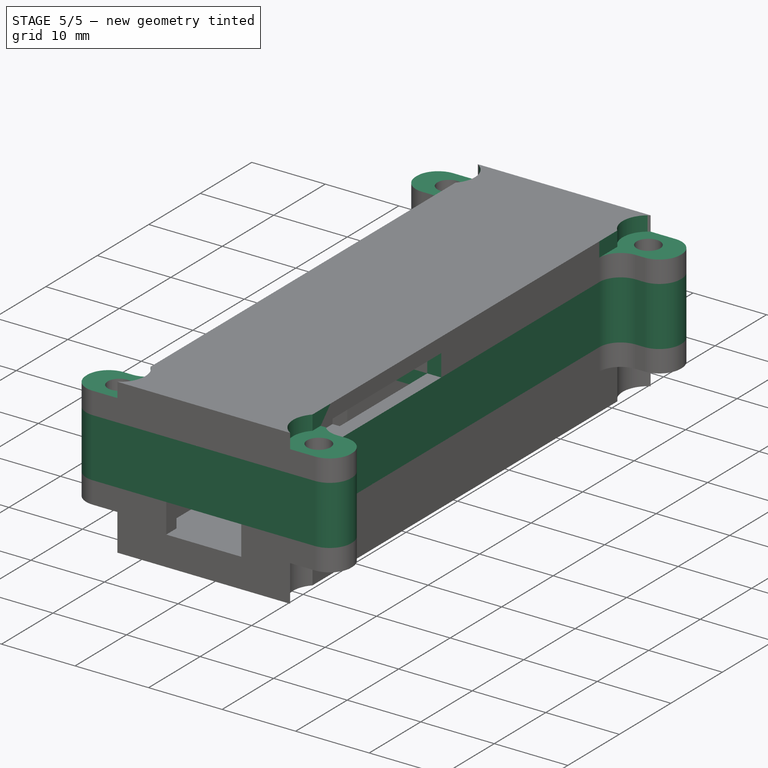
[diagram: stage 5 of 5 — iso view after this stage's code; geometry added in this stage tinted green]
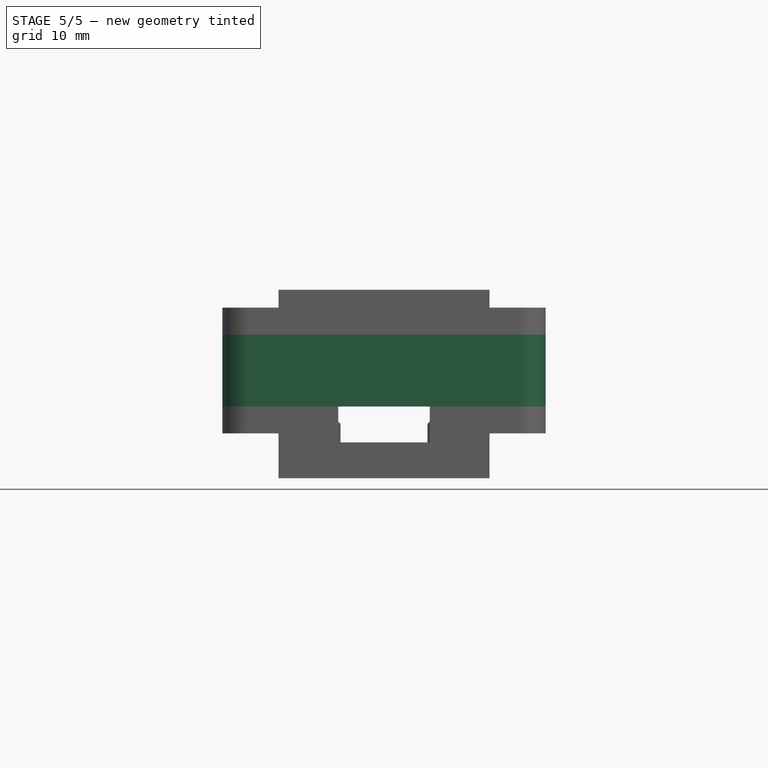
[diagram: stage 5 of 5 — front view after this stage's code; geometry added in this stage tinted green]
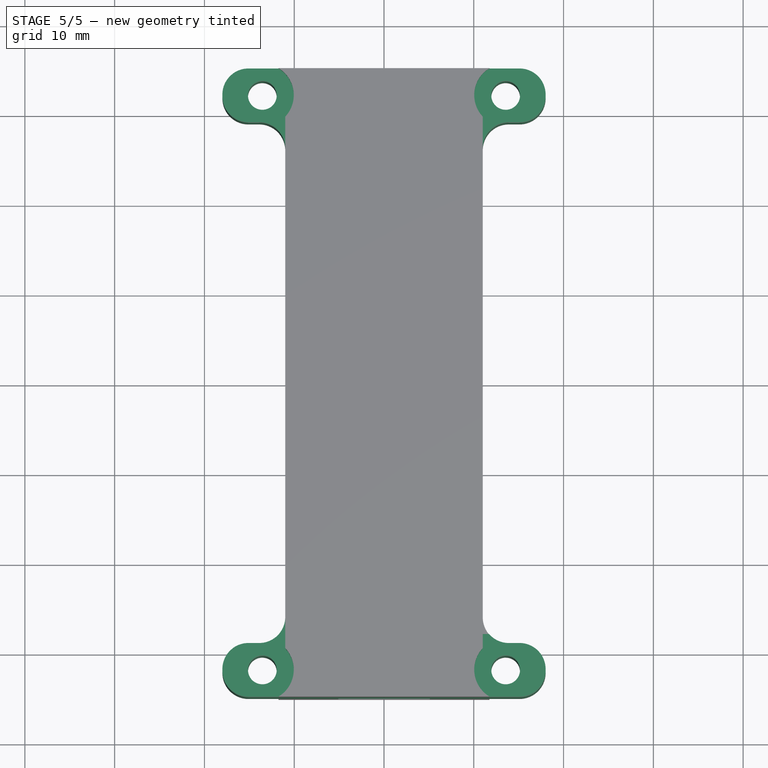
[diagram: stage 5 of 5 — top view after this stage's code; geometry added in this stage tinted green]
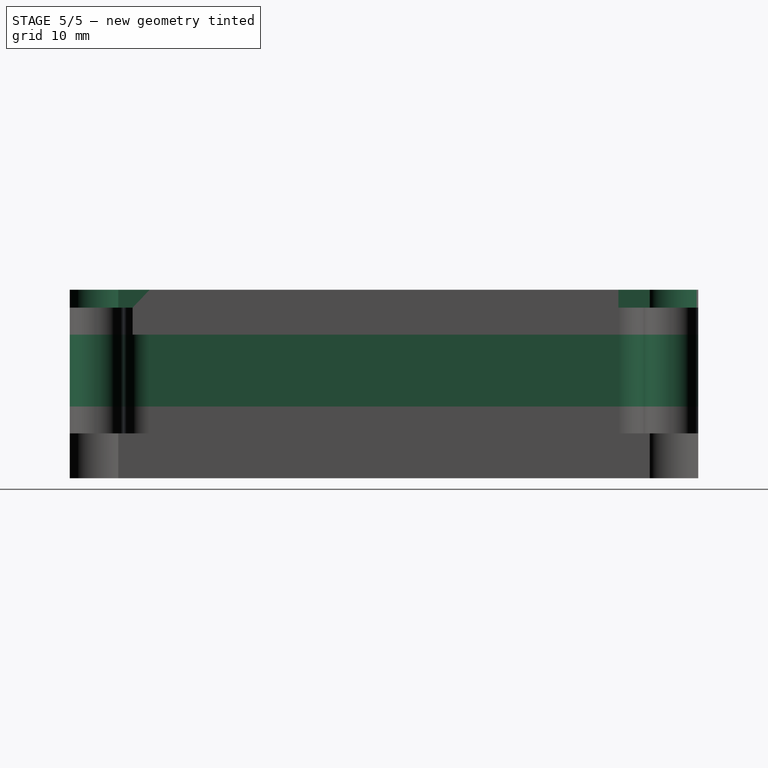
[diagram: stage 5 of 5 — right view after this stage's code; geometry added in this stage tinted green]
FEATURE [PartDesign::Fillet] Fillet001
  Base = -> Pad006 [Edge102,Edge101,Edge100,Edge98,Edge97,Edge99,Edge108,Edge107,Edge105,Edge104,Edge103,Edge106]
  BaseFeature = -> Pad006
  Radius = 2.9
FEATURE [PartDesign::Body] Body001  label="Middle"
  Group = -> [Sketch002,Pad002,ShapeBinder,Sketch008,Pad006,Fillet001]
  Origin = -> Origin002
  Tip = -> Fillet001
FEATURE [Sketcher::SketchObject] Sketch009
  ExternalGeometry = -> [Fillet]
  MapMode = 5
  Placement = pos=(11,0,0) rot=(0.57735,0.57735,0.57735;2.0944rad)
  Support = -> [Fillet]
  sketch-geometry (4):
    g0: LineSegment StartX=-28 StartY=19 StartZ=0 EndX=-4.6 EndY=19 EndZ=0
    g1: LineSegment StartX=-4.6 StartY=19 StartZ=0 EndX=-4.6 EndY=16 EndZ=0
    g2: LineSegment StartX=-4.6 StartY=16 StartZ=0 EndX=-28 EndY=16 EndZ=0
    g3: LineSegment StartX=-28 StartY=16 StartZ=0 EndX=-28 EndY=19 EndZ=0
  constraints (10):
    c: Coincident(g0,g1)
    c: Coincident(g1,g2)
    c: Coincident(g2,g3)
    c: Coincident(g3,g0)
    c: Horizontal(g0)
    c: Horizontal(g2)
    c: Vertical(g1)
    c: Vertical(g3)
    c: Coincident(g0,g-4)
    c: Coincident(g1,g-3)
FEATURE [PartDesign::Pocket] Pocket001
  BaseFeature = -> Fillet
  Length = 5.5
  Length2 = 1
  Profile = -> Sketch009
  Type = 4
FEATURE [Sketcher::SketchObject] Sketch012
  ExternalGeometry = -> [Pocket001]
  MapMode = 5
  Placement = pos=(0,0,21) rot=(0,0,1;0rad)
  Support = -> [Pocket001]
  sketch-geometry (20):
    g0: ArcOfCircle CenterX=-13.55 CenterY=32 CenterZ=0 NormalX=0 NormalY=0 NormalZ=1 AngleXU=0 Radius=3.5 StartAngle=5.52862 EndAngle=7.85398
    g1: ArcOfCircle CenterX=13.55 CenterY=32 CenterZ=0 NormalX=0 NormalY=0 NormalZ=1 AngleXU=0 Radius=3.5 StartAngle=1.5708 EndAngle=3.89615
    g2: ArcOfCircle CenterX=13.55 CenterY=-32 CenterZ=0 NormalX=0 NormalY=0 NormalZ=1 AngleXU=0 Radius=3.5 StartAngle=2.38703 EndAngle=4.71239
    g3: ArcOfCircle CenterX=-13.55 CenterY=-32 CenterZ=0 NormalX=0 NormalY=0 NormalZ=1 AngleXU=0 Radius=3.5 StartAngle=4.71239 EndAngle=7.03775
    g4: LineSegment StartX=-13.55 StartY=35.5 StartZ=0 EndX=-21 EndY=35.5 EndZ=0
    g5: LineSegment StartX=-21 StartY=35.5 StartZ=0 EndX=-21 EndY=26.1 EndZ=0
    g6: LineSegment StartX=-21 StartY=26.1 StartZ=0 EndX=-11 EndY=26.1 EndZ=0
    g7: LineSegment StartX=-11 StartY=26.1 StartZ=0 EndX=-11 EndY=29.6026 EndZ=0
    g8: LineSegment StartX=-11 StartY=-29.6026 StartZ=0 EndX=-11 EndY=-26.1 EndZ=0
    g9: LineSegment StartX=-11 StartY=-26.1 StartZ=0 EndX=-21 EndY=-26.1 EndZ=0
    g10: LineSegment StartX=-21 StartY=-26.1 StartZ=0 EndX=-21 EndY=-35.5 EndZ=0
    g11: LineSegment StartX=-21 StartY=-35.5 StartZ=0 EndX=-13.55 EndY=-35.5 EndZ=0
    g12: LineSegment StartX=11 StartY=29.6026 StartZ=0 EndX=11 EndY=26.1 EndZ=0
    g13: LineSegment StartX=11 StartY=26.1 StartZ=0 EndX=21 EndY=26.1 EndZ=0
    g14: LineSegment StartX=21 StartY=26.1 StartZ=0 EndX=21 EndY=35.5 EndZ=0
    g15: LineSegment StartX=21 StartY=35.5 StartZ=0 EndX=13.55 EndY=35.5 EndZ=0
    g16: LineSegment StartX=11 StartY=-29.6026 StartZ=0 EndX=11 EndY=-26.1 EndZ=0
    g17: LineSegment StartX=11 StartY=-26.1 StartZ=0 EndX=21 EndY=-26.1 EndZ=0
    g18: LineSegment StartX=21 StartY=-26.1 StartZ=0 EndX=21 EndY=-35.5 EndZ=0
    g19: LineSegment StartX=21 StartY=-35.5 StartZ=0 EndX=13.55 EndY=-35.5 EndZ=0
  constraints (56):
    c: Coincident(g2,g-8)
    c: Coincident(g-7,g3)
    c: Coincident(g-3,g0)
    c: Coincident(g1,g-6)
    c: Vertical(g2,g2)
    c: Vertical(g1,g1)
    c: Vertical(g0,g0)
    c: Vertical(g3,g3)
    c: PointOnObject(g0,g-4)
    c: PointOnObject(g3,g-4)
    c: PointOnObject(g2,g-5)
    c: PointOnObject(g1,g-5)
    c: Equal(g1,g0)
    c: Equal(g0,g3)
    c: Equal(g3,g2)
    c: Diameter(g0) = 7
    c: Coincident(g4,g5)
    c: Coincident(g5,g6)
    c: Coincident(g6,g7)
    c: Coincident(g8,g9)
    c: Coincident(g9,g10)
    c: Coincident(g10,g11)
    c: Coincident(g12,g13)
    c: Coincident(g13,g14)
    c: Coincident(g14,g15)
    c: Coincident(g16,g17)
    c: Coincident(g17,g18)
    c: Coincident(g18,g19)
    c: Coincident(g19,g2)
    c: Coincident(g3,g11)
    c: Coincident(g3,g8)
    c: Coincident(g-4,g8)
    c: Coincident(g-5,g16)
    c: Coincident(g16,g2)
    c: Coincident(g12,g-5)
    c: Coincident(g12,g1)
    c: Coincident(g1,g15)
    c: Coincident(g4,g0)
    c: Coincident(g0,g7)
    c: Coincident(g-4,g6)
    c: Horizontal(g15)
    c: Horizontal(g13)
    c: Horizontal(g17)
    c: Horizontal(g19)
    c: Horizontal(g11)
    c: Horizontal(g9)
    c: Horizontal(g6)
    c: Horizontal(g4)
    c: Vertical(g5)
    c: Vertical(g10)
    c: Vertical(g18)
    c: Vertical(g14)
    c: Equal(g13,g17)
    c: Equal(g17,g9)
    c: Equal(g9,g6)
    c: DistanceX(g6,g6) = 10
FEATURE [PartDesign::Pocket] Pocket004
  BaseFeature = -> Pocket001
  Length = 2
  Length2 = 100
  Profile = -> Sketch012
  Type = 0
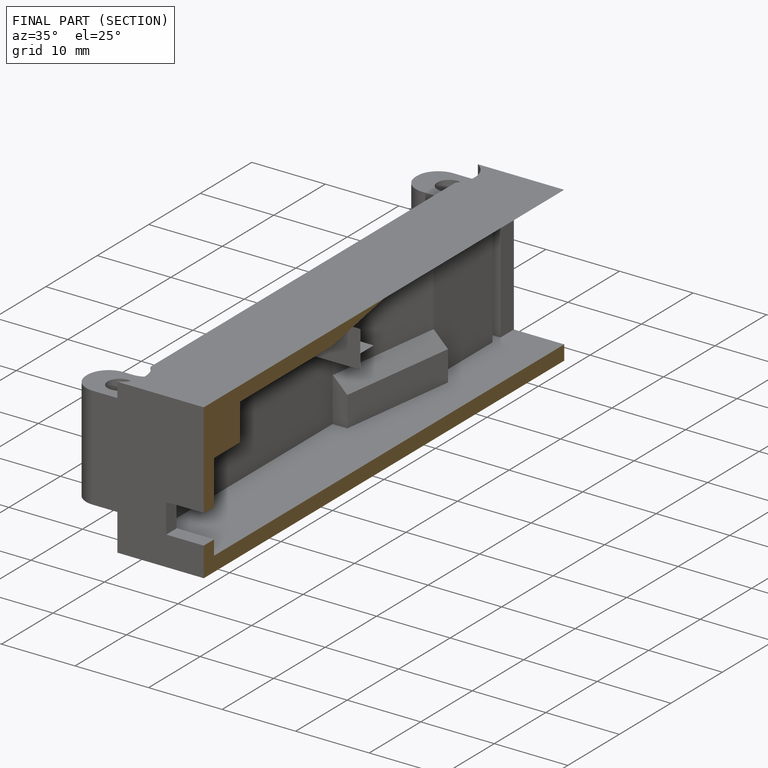
[diagram: finished part — half-section view (interior)]
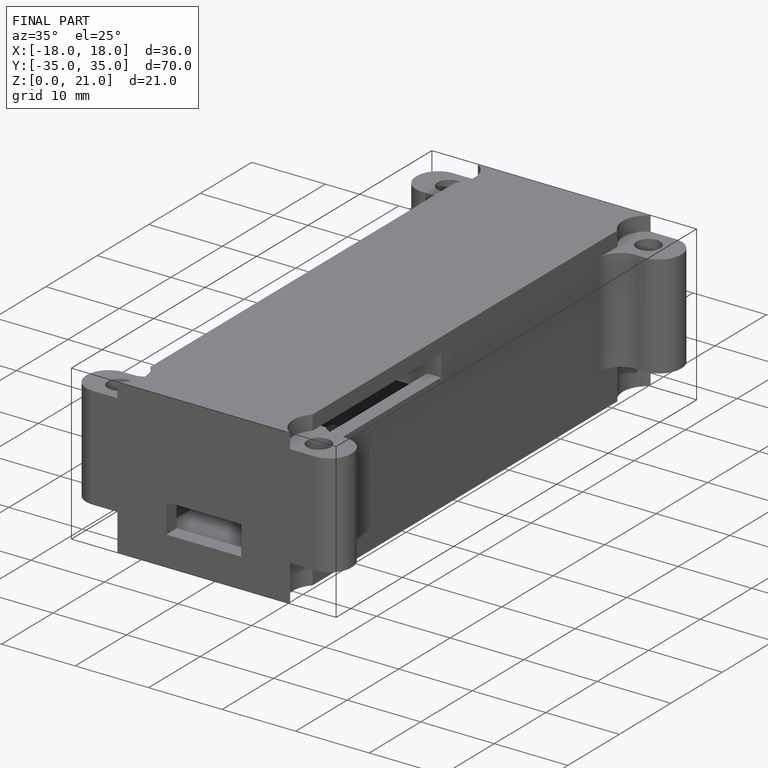
[diagram: finished part — iso view with bounding-box wireframe]
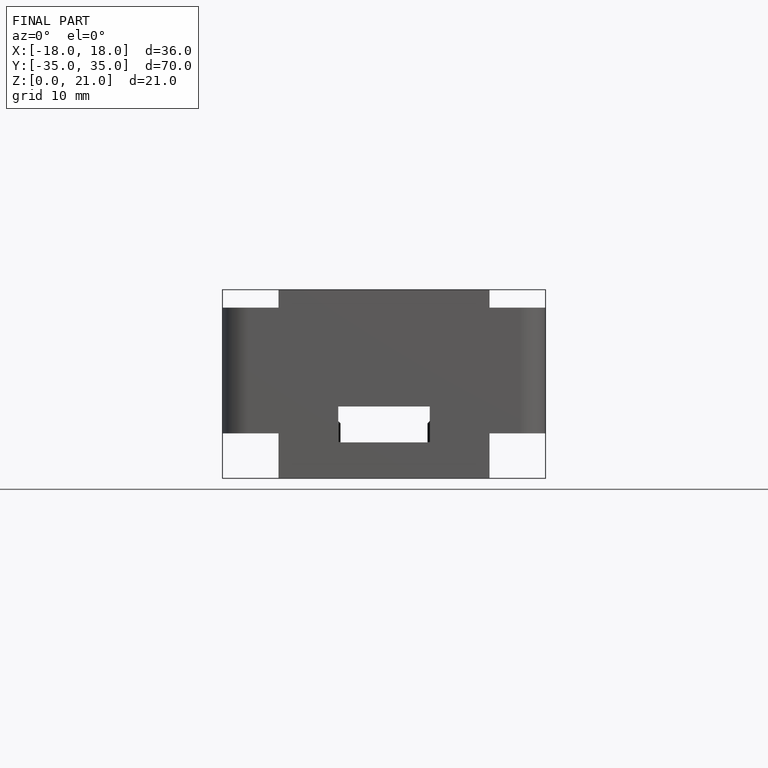
[diagram: finished part — front view with bounding-box wireframe]
